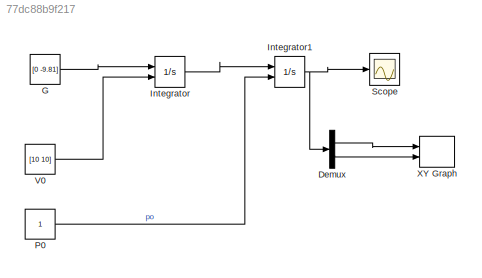
MODEL slx_77dc88b9f217
KIND model
CONFIG AbsTol = auto
CONFIG EnableMultiTasking = off
CONFIG FixedStep = auto
CONFIG MaxStep = auto
CONFIG MinStep = auto
CONFIG RelTol = 1e-3
CONFIG SampleTimeConstraint = Unconstrained
CONFIG SolverName = VariableStepAuto
CONFIG StartTime = 0.0
CONFIG StopTime = 10.0
BLOCK [Demux] Demux
  Outputs = 2
  Ports = [1, 2]
BLOCK [Constant] G
  Value = [0 -9.81]
BLOCK [Integrator] Integrator
  InitialConditionSource = external
  Ports = [2, 1]
BLOCK [Integrator] Integrator1
  InitialConditionSource = external
  Ports = [2, 1]
BLOCK [Constant] P0
BLOCK [Scope] Scope
  Floating = off
  NumInputPorts = 1
  Ports = [1]
  ScopeSpecificationString = Simulink.scopes.TimeScopeBlockCfg('CurrentConfiguration', extmgr.ConfigurationSet(extmgr.Configuration('Core','General UI',true),extmgr.Configuration('Core','Source UI',true),extmgr.Configuration('Sources','WiredSimulink',true),extmgr.Configuration('Visuals','Time Domain',true,'SerializedDisplays',{struct('MinYLimReal','-450.8125','MaxYLimReal','162.3125','YLabelReal','','MinYLimMag',' 0.00000','M...<+1412ch>
BLOCK [Constant] V0
  Value = [10 10]
BLOCK [Record] XY Graph
  CompatibilityTag = XY
  FileSettingsInternal = {"entries":[{"content":{"excelSettings":{"content":{},"type":"Streamout.ExcelSettings"}},"type":"Streamout.FileSettingStorage","uuid":"be63c21b-ac35-4d8d-9ac4-3da4b26d76fc"}],"packageUris":["http://schema.mathworks.com/mf0/streamout_blocks/R2020a"],"version":"1.0"}
  Layout = [1 1]
  Ports = [2]
  SignalsInternal = {"entries":[{"content":{"signals":[{"content":{"blockPath":["untitled/XY Graph"],"channel":[],"dimensions":[1],"domain":"untitled/XY Graph","lineColor":"#a2142f","plots":[1],"port":1,"sid":[""],"signalID":36,"signalName":"Demux:1"},"type":"RecordBlkView.Signal","uuid":"cdddf307-cf90-47f2-94ee-9896b94fa634"},{"content":{"blockPath":["untitled/XY Graph"],"channel":[],"dimensions":[1],"domain":"untit...<+359ch>
  VisualizationBindings = {"xyplotplugin":{"info":[{"series":[{"bindingParametersList":[{"parameter":"X-Axis","signalID":36,"signalName":"Demux:1"},{"parameter":"Y-Axis","signalID":40,"signalName":"Demux:2"}],"seriesID":24348}],"subplotID":1}]}}
LINE Demux:1 -> XY Graph:1
LINE Demux:2 -> XY Graph:2
LINE G:1 -> Integrator:1
NET Integrator1:1 -> Demux:1, Scope:1
LINE Integrator:1 -> Integrator1:1
LINE P0:1 -> Integrator1:2
LINE V0:1 -> Integrator:2
note: NET lines group one-source signal fan-out (src -> all destinations, sorted); 1:1 wires keep LINE
